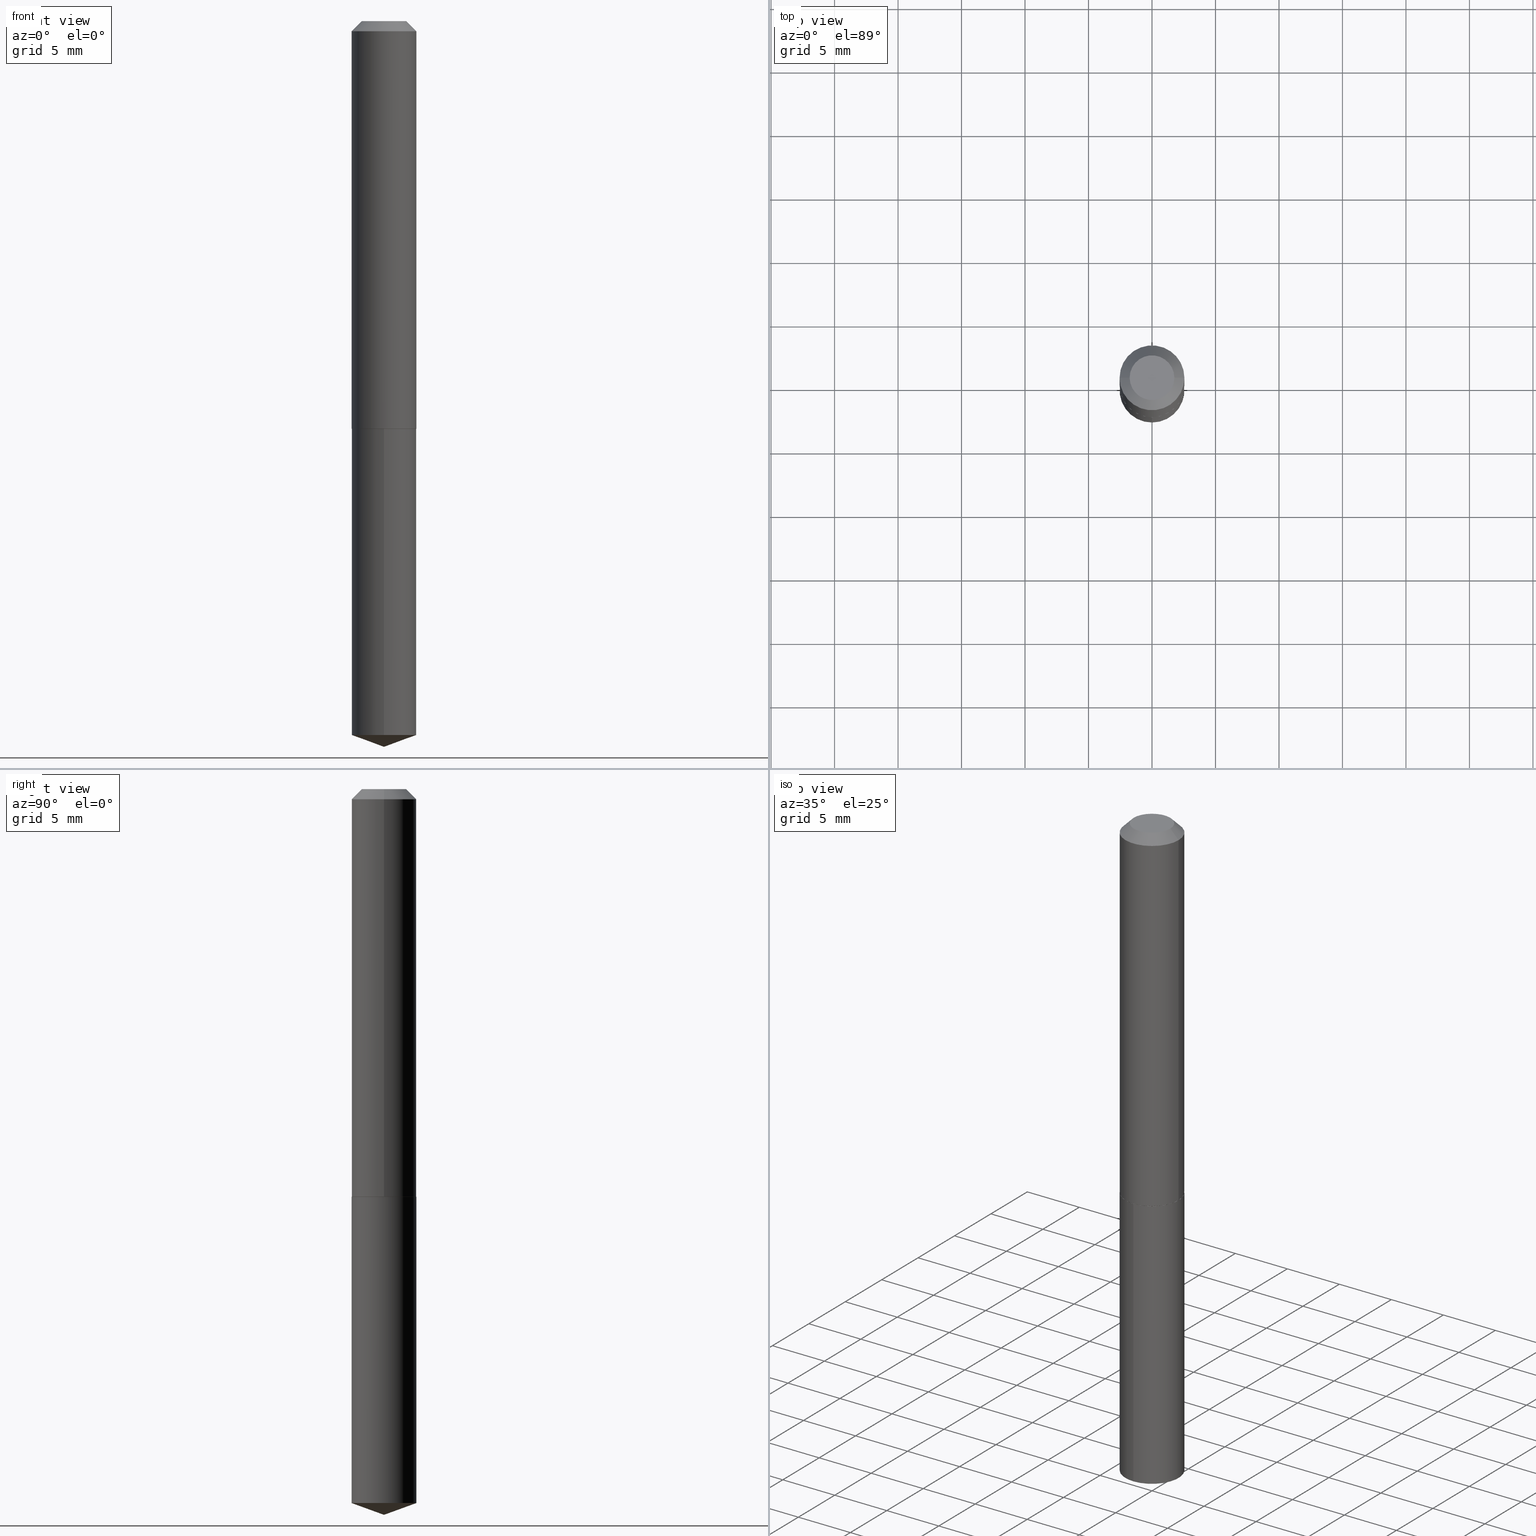
[diagram: canonical four-view strip — front | top / right | iso, engineering-drawing reading convention]
A machine part, canonical four-view strip (front | top / right | iso — engineering-drawing reading convention). The complete STEP part file that produces these views, byte-faithful:
ISO-10303-21;
HEADER;
FILE_DESCRIPTION (( 'STEP AP203' ),
    '1' );
FILE_NAME ('56007.STEP',
    '2024-04-22T19:37:42',
    ( '' ),
    ( '' ),
    'SwSTEP 2.0',
    'SolidWorks 2023',
    '' );
FILE_SCHEMA (( 'CONFIG_CONTROL_DESIGN' ));
ENDSEC;

DATA;
#1 = EDGE_CURVE ( 'NONE', #98, #365, #374, .T. ) ;
#2 = EDGE_LOOP ( 'NONE', ( #236, #154, #123, #264 ) ) ;
#3 = CONICAL_SURFACE ( 'NONE', #91, 0.1005000000000001864, 0.7853981633977044075 ) ;
#4 = VERTEX_POINT ( 'NONE', #195 ) ;
#5 = CARTESIAN_POINT ( 'NONE',  ( 3.089849836614920220E-29, -4.411486671628314645E-15, -1.263500000000000068 ) ) ;
#6 = EDGE_LOOP ( 'NONE', ( #230, #135, #69, #27 ) ) ;
#7 = EDGE_CURVE ( 'NONE', #328, #125, #363, .T. ) ;
#8 = CALENDAR_DATE ( 2024, 22, 4 ) ;
#9 = CARTESIAN_POINT ( 'NONE',  ( 3.089849836614920220E-29, -4.411486671628314645E-15, -1.263500000000000068 ) ) ;
#10 = CARTESIAN_POINT ( 'NONE',  ( 3.089849836614919660E-29, -4.411486671628313857E-15, -1.263499999999999845 ) ) ;
#11 = CARTESIAN_POINT ( 'NONE',  ( 7.642090019328600035E-31, -1.091087918388489897E-16, -0.03125000000000020123 ) ) ;
#12 = APPROVAL_DATE_TIME ( #372, #71 ) ;
#13 = EDGE_CURVE ( 'NONE', #328, #93, #244, .T. ) ;
#14 = DIRECTION ( 'NONE',  ( -1.000000000000000000, 6.982962677686266711E-15, 0.000000000000000000 ) ) ;
#15 = CARTESIAN_POINT ( 'NONE',  ( 7.140954494389548650E-16, 0.1004999999999956067, -1.263500000000000290 ) ) ;
#16 = EDGE_CURVE ( 'NONE', #125, #359, #168, .T. ) ;
#17 = SECURITY_CLASSIFICATION_LEVEL ( 'unclassified' ) ;
#18 = PERSON_AND_ORGANIZATION_ROLE ( 'design_owner' ) ;
#19 = DIRECTION ( 'NONE',  ( -6.982962677686268288E-15, -1.000000000000000000, 3.475157955500721397E-15 ) ) ;
#20 = APPROVAL_DATE_TIME ( #45, #291 ) ;
#21 = CARTESIAN_POINT ( 'NONE',  ( 0.000000000000000000, 0.000000000000000000, 0.000000000000000000 ) ) ;
#22 = FACE_OUTER_BOUND ( 'NONE', #174, .T. ) ;
#23 = CIRCLE ( 'NONE', #352, 0.1005000000000000060 ) ;
#24 = AXIS2_PLACEMENT_3D ( 'NONE', #321, #384, #51 ) ;
#25 = PRODUCT_DEFINITION ( 'UNKNOWN', '', #259, #223 ) ;
#26 = EDGE_LOOP ( 'NONE', ( #37, #294 ) ) ;
#27 = ORIENTED_EDGE ( 'NONE', *, *, #254, .F. ) ;
#28 = APPROVAL_STATUS ( 'not_yet_approved' ) ;
#29 = AXIS2_PLACEMENT_3D ( 'NONE', #49, #239, #14 ) ;
#30 = CC_DESIGN_APPROVAL ( #291, ( #203 ) ) ;
#31 = EDGE_LOOP ( 'NONE', ( #210, #96 ) ) ;
#32 = EDGE_CURVE ( 'NONE', #324, #121, #23, .T. ) ;
#33 = ORIENTED_EDGE ( 'NONE', *, *, #385, .T. ) ;
#34 = ORIENTED_EDGE ( 'NONE', *, *, #183, .T. ) ;
#35 = AXIS2_PLACEMENT_3D ( 'NONE', #117, #227, #356 ) ;
#36 = EDGE_CURVE ( 'NONE', #125, #328, #132, .T. ) ;
#37 = ORIENTED_EDGE ( 'NONE', *, *, #32, .T. ) ;
#38 = CARTESIAN_POINT ( 'NONE',  ( 7.140954494389315936E-16, 0.1004999999999956067, -1.263500000000000290 ) ) ;
#39 = CARTESIAN_POINT ( 'NONE',  ( -9.077337119869925652E-28, 1.296078191380455947E-13, 37.12007874015748143 ) ) ;
#40 = LINE ( 'NONE', #193, #350 ) ;
#41 = DIRECTION ( 'NONE',  ( -2.445400458116039317E-29, 3.491579217168223219E-15, 1.000000000000000000 ) ) ;
#42 = APPROVAL_STATUS ( 'not_yet_approved' ) ;
#43 = CARTESIAN_POINT ( 'NONE',  ( -9.077337119869925652E-28, 1.296078191380455947E-13, 37.12007874015748143 ) ) ;
#44 = DIRECTION ( 'NONE',  ( -1.000000000000000000, 6.982962677686266711E-15, 0.000000000000000000 ) ) ;
#45 = DATE_AND_TIME ( #137, #111 ) ;
#46 = VECTOR ( 'NONE', #106, 39.37007874015748143 ) ;
#47 = LINE ( 'NONE', #76, #89 ) ;
#48 = DIRECTION ( 'NONE',  ( -2.438088387897960049E-29, 3.491481338843145188E-15, 1.000000000000000000 ) ) ;
#49 = CARTESIAN_POINT ( 'NONE',  ( 7.642090019328600035E-31, -1.091087918388489897E-16, -0.03125000000000020123 ) ) ;
#50 = PERSON_AND_ORGANIZATION_ROLE ( 'creator' ) ;
#51 = DIRECTION ( 'NONE',  ( 1.000000000000000000, -6.982962677686266711E-15, 0.000000000000000000 ) ) ;
#52 = LOCAL_TIME ( 15, 37, 42.00000000000000000, #126 ) ;
#53 = CARTESIAN_POINT ( 'NONE',  ( -7.017877491074157398E-16, -0.1005000000000077498, -2.213420991456246600 ) ) ;
#54 = DIRECTION ( 'NONE',  ( -2.445468806185136597E-29, 3.491481338843145583E-15, 1.000000000000000000 ) ) ;
#55 = PERSON ( 'UNSPECIFIED', 'UNSPECIFIED', 'UNSPECIFIED', ('UNSPECIFIED'), ('UNSPECIFIED'), ('UNSPECIFIED') ) ;
#56 =( LENGTH_UNIT ( ) NAMED_UNIT ( * ) SI_UNIT ( $, .METRE. ) );
#57 = ADVANCED_FACE ( 'NONE', ( #188 ), #186, .T. ) ;
#58 = MECHANICAL_CONTEXT ( 'NONE', #171, 'mechanical' ) ;
#59 = PRODUCT_RELATED_PRODUCT_CATEGORY ( 'detail', '', ( #229 ) ) ;
#60 = EDGE_CURVE ( 'NONE', #4, #332, #255, .T. ) ;
#61 = ORIENTED_EDGE ( 'NONE', *, *, #295, .T. ) ;
#62 = DATE_AND_TIME ( #8, #228 ) ;
#63 = EDGE_LOOP ( 'NONE', ( #339, #94, #247, #180 ) ) ;
#64 = ADVANCED_FACE ( 'NONE', ( #378 ), #369, .T. ) ;
#65 = ADVANCED_FACE ( 'NONE', ( #218 ), #240, .T. ) ;
#66 = APPROVAL_DATE_TIME ( #305, #226 ) ;
#67 = CIRCLE ( 'NONE', #323, 0.1005000000000000060 ) ;
#68 = APPROVAL_PERSON_ORGANIZATION ( #79, #291, #376 ) ;
#69 = ORIENTED_EDGE ( 'NONE', *, *, #32, .F. ) ;
#70 = ORIENTED_EDGE ( 'NONE', *, *, #385, .F. ) ;
#71 = APPROVAL ( #28, 'UNSPECIFIED' ) ;
#72 = EDGE_LOOP ( 'NONE', ( #176, #61, #233, #211 ) ) ;
#73 = DIRECTION ( 'NONE',  ( 1.000000000000000000, -6.982962677686263555E-15, 0.000000000000000000 ) ) ;
#74 = DIRECTION ( 'NONE',  ( 1.000000000000000000, -6.982962677686267499E-15, 0.000000000000000000 ) ) ;
#75 = DIRECTION ( 'NONE',  ( -6.561838499445203218E-15, -0.9396926207859074287, 0.3420201433256712664 ) ) ;
#76 = CARTESIAN_POINT ( 'NONE',  ( -7.017877491074388140E-16, -0.1005000000000044191, -1.263499999999999845 ) ) ;
#77 = DIRECTION ( 'NONE',  ( -2.445468806185136597E-29, 3.491481338843145583E-15, 1.000000000000000000 ) ) ;
#78 = LINE ( 'NONE', #136, #110 ) ;
#79 = PERSON_AND_ORGANIZATION ( #55, #249 ) ;
#80 = CARTESIAN_POINT ( 'NONE',  ( 4.492253318863949576E-48, -6.413747168845403315E-34, -1.836970198721013465E-19 ) ) ;
#81 = AXIS2_PLACEMENT_3D ( 'NONE', #130, #184, #237 ) ;
#82 = DIRECTION ( 'NONE',  ( 0.7071067811867286501, -2.468850131084153877E-15, 0.7071067811863664954 ) ) ;
#83 = PERSON_AND_ORGANIZATION ( #55, #249 ) ;
#84 = DIRECTION ( 'NONE',  ( 2.438088387897960049E-29, -3.491481338843145188E-15, -1.000000000000000000 ) ) ;
#85 = CARTESIAN_POINT ( 'NONE',  ( -7.017877491074388140E-16, -0.1005000000000044191, -1.263499999999999845 ) ) ;
#86 = ADVANCED_FACE ( 'NONE', ( #340 ), #133, .F. ) ;
#87 = CARTESIAN_POINT ( 'NONE',  ( 0.000000000000000000, 0.000000000000000000, 0.000000000000000000 ) ) ;
#88 = CARTESIAN_POINT ( 'NONE',  ( 0.1005000000000001864, -5.111528680066364398E-15, -1.263000000000000123 ) ) ;
#89 = VECTOR ( 'NONE', #347, 39.37007874015748143 ) ;
#90 = EDGE_CURVE ( 'NONE', #98, #177, #40, .T. ) ;
#91 = AXIS2_PLACEMENT_3D ( 'NONE', #196, #128, #74 ) ;
#92 = ORIENTED_EDGE ( 'NONE', *, *, #131, .F. ) ;
#93 = VERTEX_POINT ( 'NONE', #366 ) ;
#94 = ORIENTED_EDGE ( 'NONE', *, *, #122, .T. ) ;
#95 = FACE_OUTER_BOUND ( 'NONE', #6, .T. ) ;
#96 = ORIENTED_EDGE ( 'NONE', *, *, #122, .F. ) ;
#97 = CC_DESIGN_PERSON_AND_ORGANIZATION_ASSIGNMENT ( #156, #268, ( #25 ) ) ;
#98 = VERTEX_POINT ( 'NONE', #314 ) ;
#99 = PLANE ( 'NONE',  #298 ) ;
#100 = DIRECTION ( 'NONE',  ( -2.445400458116039317E-29, 3.491579217168223219E-15, 1.000000000000000000 ) ) ;
#101 = APPROVAL_PERSON_ORGANIZATION ( #296, #71, #150 ) ;
#102 = MANIFOLD_SOLID_BREP ( 'Body-Move/Copy2[1]', #292 ) ;
#103 = DIRECTION ( 'NONE',  ( 1.000000000000000000, -6.982962677686265922E-15, 4.876176775795935793E-29 ) ) ;
#104 = PERSON_AND_ORGANIZATION ( #55, #249 ) ;
#105 = ADVANCED_FACE ( 'NONE', ( #345 ), #99, .F. ) ;
#106 = DIRECTION ( 'NONE',  ( 0.7071067811865452413, -7.319954787623248157E-15, -0.7071067811865497932 ) ) ;
#107 = FACE_OUTER_BOUND ( 'NONE', #63, .T. ) ;
#108 = DIRECTION ( 'NONE',  ( -6.982962677686265922E-15, -1.000000000000000000, 2.718256710113694497E-15 ) ) ;
#109 = CARTESIAN_POINT ( 'NONE',  ( 4.492253318863949576E-48, -6.413747168845403315E-34, -1.836970198721013465E-19 ) ) ;
#110 = VECTOR ( 'NONE', #245, 39.37007874015748143 ) ;
#111 = LOCAL_TIME ( 15, 37, 42.00000000000000000, #380 ) ;
#112 = CALENDAR_DATE ( 2024, 22, 4 ) ;
#113 = DIRECTION ( 'NONE',  ( -6.982962677686265922E-15, -1.000000000000000000, 2.718256710113694497E-15 ) ) ;
#114 = APPROVAL_STATUS ( 'not_yet_approved' ) ;
#115 = DIRECTION ( 'NONE',  ( 1.000000000000000000, -6.982962677686267499E-15, 0.000000000000000000 ) ) ;
#116 = PRODUCT_DEFINITION_SHAPE ( 'NONE', 'NONE',  #25 ) ;
#117 = CARTESIAN_POINT ( 'NONE',  ( 0.000000000000000000, 0.000000000000000000, 0.000000000000000000 ) ) ;
#118 = AXIS2_PLACEMENT_3D ( 'NONE', #214, #336, #113 ) ;
#119 = AXIS2_PLACEMENT_3D ( 'NONE', #43, #315, #19 ) ;
#120 = EDGE_LOOP ( 'NONE', ( #92, #362, #207, #269 ) ) ;
#121 = VERTEX_POINT ( 'NONE', #15 ) ;
#122 = EDGE_CURVE ( 'NONE', #332, #4, #192, .T. ) ;
#123 = ORIENTED_EDGE ( 'NONE', *, *, #13, .T. ) ;
#124 = VECTOR ( 'NONE', #311, 39.37007874015748143 ) ;
#125 = VERTEX_POINT ( 'NONE', #271 ) ;
#126 = COORDINATED_UNIVERSAL_TIME_OFFSET ( 5, 0, .BEHIND. ) ;
#127 = ORIENTED_EDGE ( 'NONE', *, *, #90, .T. ) ;
#128 = DIRECTION ( 'NONE',  ( -2.445468806185136597E-29, 3.491481338843145583E-15, 1.000000000000000000 ) ) ;
#129 = COORDINATED_UNIVERSAL_TIME_OFFSET ( 5, 0, .BEHIND. ) ;
#130 = CARTESIAN_POINT ( 'NONE',  ( 3.089849836614920220E-29, -4.411486671628314645E-15, -1.263500000000000068 ) ) ;
#131 = EDGE_CURVE ( 'NONE', #365, #121, #333, .T. ) ;
#132 = CIRCLE ( 'NONE', #234, 0.06925000000000000600 ) ;
#133 = PLANE ( 'NONE',  #148 ) ;
#134 = VECTOR ( 'NONE', #221, 39.37007874015748854 ) ;
#135 = ORIENTED_EDGE ( 'NONE', *, *, #131, .T. ) ;
#136 = CARTESIAN_POINT ( 'NONE',  ( 0.1005000000000000893, -7.017877491074704671E-16, 4.900557659674919900E-30 ) ) ;
#137 = CALENDAR_DATE ( 2024, 22, 4 ) ;
#138 = DIRECTION ( 'NONE',  ( 1.000000000000000000, -6.982962677686263555E-15, 0.000000000000000000 ) ) ;
#139 = ADVANCED_BREP_SHAPE_REPRESENTATION ( '56007', ( #102, #361, #35 ), #329 ) ;
#140 = DIRECTION ( 'NONE',  ( 6.982962677686265922E-15, 1.000000000000000000, -3.491579217168222825E-15 ) ) ;
#141 = CC_DESIGN_APPROVAL ( #226, ( #25 ) ) ;
#142 = DIRECTION ( 'NONE',  ( -2.445468806185136597E-29, 3.491481338843145583E-15, 1.000000000000000000 ) ) ;
#143 = DIRECTION ( 'NONE',  ( 1.000000000000000000, -6.982962677686267499E-15, 0.000000000000000000 ) ) ;
#144 = EDGE_CURVE ( 'NONE', #365, #177, #379, .T. ) ;
#145 = CIRCLE ( 'NONE', #386, 0.1005000000000001864 ) ;
#146 =( CONVERSION_BASED_UNIT ( 'INCH', #289 ) LENGTH_UNIT ( ) NAMED_UNIT ( #179 ) );
#147 = ORIENTED_EDGE ( 'NONE', *, *, #1, .T. ) ;
#148 = AXIS2_PLACEMENT_3D ( 'NONE', #162, #84, #308 ) ;
#149 = CC_DESIGN_APPROVAL ( #71, ( #259 ) ) ;
#150 = APPROVAL_ROLE ( '' ) ;
#151 = ORIENTED_EDGE ( 'NONE', *, *, #16, .T. ) ;
#152 = VERTEX_POINT ( 'NONE', #88 ) ;
#153 = EDGE_LOOP ( 'NONE', ( #178, #151, #33, #262 ) ) ;
#154 = ORIENTED_EDGE ( 'NONE', *, *, #7, .F. ) ;
#155 = CARTESIAN_POINT ( 'NONE',  ( -0.1000000000000002970, -3.698294708694101050E-15, -1.263499999999999845 ) ) ;
#156 = PERSON_AND_ORGANIZATION ( #55, #249 ) ;
#157 = DIRECTION ( 'NONE',  ( -2.445400458116039317E-29, 3.491579217168222825E-15, 1.000000000000000000 ) ) ;
#158 = DIRECTION ( 'NONE',  ( -6.982962677686268288E-15, -1.000000000000000000, 3.475157955500721397E-15 ) ) ;
#159 = PERSON_AND_ORGANIZATION_ROLE ( 'design_supplier' ) ;
#160 = CARTESIAN_POINT ( 'NONE',  ( 5.502325260843377082E-29, -7.855805900101031089E-15, -2.250000000000000000 ) ) ;
#161 = DIRECTION ( 'NONE',  ( -6.982962677686265922E-15, -1.000000000000000000, 2.718256710113694497E-15 ) ) ;
#162 = CARTESIAN_POINT ( 'NONE',  ( 2.246126659431974788E-48, -3.206873584422701658E-34, -9.184850993605067327E-20 ) ) ;
#163 = DIRECTION ( 'NONE',  ( -0.7071067811867286501, 7.493145998871008915E-15, 0.7071067811863664954 ) ) ;
#164 = SHAPE_DEFINITION_REPRESENTATION ( #116, #139 ) ;
#165 = DIRECTION ( 'NONE',  ( -2.445468806185136597E-29, 3.491481338843145583E-15, 1.000000000000000000 ) ) ;
#166 = CALENDAR_DATE ( 2024, 22, 4 ) ;
#167 = CC_DESIGN_PERSON_AND_ORGANIZATION_ASSIGNMENT ( #216, #159, ( #259 ) ) ;
#168 = LINE ( 'NONE', #377, #46 ) ;
#169 = PLANE ( 'NONE',  #341 ) ;
#170 = AXIS2_PLACEMENT_3D ( 'NONE', #39, #100, #158 ) ;
#171 = APPLICATION_CONTEXT ( 'configuration controlled 3d designs of mechanical parts and assemblies' ) ;
#172 = DIRECTION ( 'NONE',  ( -2.445468806185136597E-29, 3.491481338843145583E-15, 1.000000000000000000 ) ) ;
#173 = CONICAL_SURFACE ( 'NONE', #351, 0.1005000000000000060, 0.7853981633974450594 ) ;
#174 = EDGE_LOOP ( 'NONE', ( #34, #327, #70, #205 ) ) ;
#175 = DATE_TIME_ROLE ( 'creation_date' ) ;
#176 = ORIENTED_EDGE ( 'NONE', *, *, #60, .T. ) ;
#177 = VERTEX_POINT ( 'NONE', #53 ) ;
#178 = ORIENTED_EDGE ( 'NONE', *, *, #36, .F. ) ;
#179 = DIMENSIONAL_EXPONENTS ( 1.000000000000000000, 0.000000000000000000, 0.000000000000000000, 0.000000000000000000, 0.000000000000000000, 0.000000000000000000, 0.000000000000000000 ) ;
#180 = ORIENTED_EDGE ( 'NONE', *, *, #330, .F. ) ;
#181 = CALENDAR_DATE ( 2024, 22, 4 ) ;
#182 = VECTOR ( 'NONE', #82, 39.37007874015748143 ) ;
#183 = EDGE_CURVE ( 'NONE', #152, #331, #145, .T. ) ;
#184 = DIRECTION ( 'NONE',  ( -2.445400458116039317E-29, 3.491579217168223219E-15, 1.000000000000000000 ) ) ;
#185 = APPLICATION_CONTEXT ( 'configuration controlled 3d designs of mechanical parts and assemblies' ) ;
#186 = CYLINDRICAL_SURFACE ( 'NONE', #81, 0.1005000000000000060 ) ;
#187 = LINE ( 'NONE', #367, #286 ) ;
#188 = FACE_OUTER_BOUND ( 'NONE', #120, .T. ) ;
#189 = CARTESIAN_POINT ( 'NONE',  ( 3.089849836614920220E-29, -4.411486671628314645E-15, -1.263500000000000068 ) ) ;
#190 = EDGE_CURVE ( 'NONE', #93, #359, #202, .T. ) ;
#191 = AXIS2_PLACEMENT_3D ( 'NONE', #80, #217, #278 ) ;
#192 = CIRCLE ( 'NONE', #370, 0.1000000000000002970 ) ;
#193 = CARTESIAN_POINT ( 'NONE',  ( 5.502151030761089024E-29, -7.856053238628501948E-15, -2.250000000000000000 ) ) ;
#194 = LOCAL_TIME ( 15, 37, 42.00000000000000000, #284 ) ;
#195 = CARTESIAN_POINT ( 'NONE',  ( 0.1000000000000002970, -5.109782939396942105E-15, -1.263499999999999845 ) ) ;
#196 = CARTESIAN_POINT ( 'NONE',  ( 3.088627102211827979E-29, -4.409740930958893142E-15, -1.263000000000000123 ) ) ;
#197 = DIRECTION ( 'NONE',  ( -2.445468806185136597E-29, 3.491481338843145583E-15, 1.000000000000000000 ) ) ;
#198 = AXIS2_PLACEMENT_3D ( 'NONE', #10, #77, #73 ) ;
#199 = DIRECTION ( 'NONE',  ( 1.000000000000000000, -6.982962677686266711E-15, 4.876176775795935793E-29 ) ) ;
#200 = CC_DESIGN_PERSON_AND_ORGANIZATION_ASSIGNMENT ( #248, #317, ( #203 ) ) ;
#201 = ADVANCED_FACE ( 'NONE', ( #224 ), #169, .F. ) ;
#202 = CIRCLE ( 'NONE', #24, 0.1005000000000000060 ) ;
#203 = SECURITY_CLASSIFICATION ( '', '', #17 ) ;
#204 = ADVANCED_FACE ( 'NONE', ( #22 ), #288, .T. ) ;
#205 = ORIENTED_EDGE ( 'NONE', *, *, #283, .F. ) ;
#206 = ORIENTED_EDGE ( 'NONE', *, *, #190, .F. ) ;
#207 = ORIENTED_EDGE ( 'NONE', *, *, #254, .T. ) ;
#208 = ADVANCED_FACE ( 'NONE', ( #222 ), #241, .T. ) ;
#209 = AXIS2_PLACEMENT_3D ( 'NONE', #21, #142, #199 ) ;
#210 = ORIENTED_EDGE ( 'NONE', *, *, #60, .F. ) ;
#211 = ORIENTED_EDGE ( 'NONE', *, *, #353, .F. ) ;
#212 = CARTESIAN_POINT ( 'NONE',  ( 3.089849836614919660E-29, -4.411486671628313857E-15, -1.263499999999999845 ) ) ;
#213 = CARTESIAN_POINT ( 'NONE',  ( 3.088627102211827979E-29, -4.409740930958893142E-15, -1.263000000000000123 ) ) ;
#214 = CARTESIAN_POINT ( 'NONE',  ( 5.412787064296067741E-29, -7.728211063348778452E-15, -2.213420991456246600 ) ) ;
#215 = CARTESIAN_POINT ( 'NONE',  ( 7.140954494389547664E-16, 0.1004999999999922899, -2.213420991456247044 ) ) ;
#216 = PERSON_AND_ORGANIZATION ( #55, #249 ) ;
#217 = DIRECTION ( 'NONE',  ( -2.445468806185136597E-29, 3.491481338843145583E-15, 1.000000000000000000 ) ) ;
#218 = FACE_OUTER_BOUND ( 'NONE', #358, .T. ) ;
#219 = FACE_OUTER_BOUND ( 'NONE', #2, .T. ) ;
#220 = AXIS2_PLACEMENT_3D ( 'NONE', #11, #54, #322 ) ;
#221 = DIRECTION ( 'NONE',  ( 6.676917655467968129E-15, 0.9396926207859097602, 0.3420201433256646606 ) ) ;
#222 = FACE_OUTER_BOUND ( 'NONE', #72, .T. ) ;
#223 = DESIGN_CONTEXT ( 'detailed design', #185, 'design' ) ;
#224 = FACE_OUTER_BOUND ( 'NONE', #26, .T. ) ;
#225 = CONICAL_SURFACE ( 'NONE', #170, 108.1684023407334223, 1.221730476396031495 ) ;
#226 = APPROVAL ( #114, 'UNSPECIFIED' ) ;
#227 = DIRECTION ( 'NONE',  ( 0.000000000000000000, 0.000000000000000000, 1.000000000000000000 ) ) ;
#228 = LOCAL_TIME ( 15, 37, 42.00000000000000000, #129 ) ;
#229 = PRODUCT ( '56007', '56007', '', ( #58 ) ) ;
#230 = ORIENTED_EDGE ( 'NONE', *, *, #381, .T. ) ;
#231 = EDGE_LOOP ( 'NONE', ( #263, #389 ) ) ;
#232 = DIRECTION ( 'NONE',  ( -6.982962677686265922E-15, -1.000000000000000000, 2.718256710113694497E-15 ) ) ;
#233 = ORIENTED_EDGE ( 'NONE', *, *, #183, .F. ) ;
#234 = AXIS2_PLACEMENT_3D ( 'NONE', #109, #306, #282 ) ;
#235 = CIRCLE ( 'NONE', #293, 0.1005000000000000060 ) ;
#236 = ORIENTED_EDGE ( 'NONE', *, *, #16, .F. ) ;
#237 = DIRECTION ( 'NONE',  ( -6.982962677686265922E-15, -1.000000000000000000, 2.718256710113694497E-15 ) ) ;
#238 = CARTESIAN_POINT ( 'NONE',  ( -0.1005000000000000893, 7.140954494389013210E-16, -4.943529765706185016E-30 ) ) ;
#239 = DIRECTION ( 'NONE',  ( 2.445468806185136597E-29, -3.491481338843145583E-15, -1.000000000000000000 ) ) ;
#240 = CONICAL_SURFACE ( 'NONE', #119, 108.1684023407334223, 1.221730476396031495 ) ;
#241 = CONICAL_SURFACE ( 'NONE', #334, 0.1005000000000001864, 0.7853981633977044075 ) ;
#242 = DIRECTION ( 'NONE',  ( -0.7071067811865452413, 2.468850131082233000E-15, -0.7071067811865497932 ) ) ;
#243 = DIRECTION ( 'NONE',  ( -6.982962677686265922E-15, -1.000000000000000000, 2.718256710113694497E-15 ) ) ;
#244 = LINE ( 'NONE', #310, #277 ) ;
#245 = DIRECTION ( 'NONE',  ( -2.445468806185136877E-29, 3.491481338843145188E-15, 1.000000000000000000 ) ) ;
#246 = COORDINATED_UNIVERSAL_TIME_OFFSET ( 5, 0, .BEHIND. ) ;
#247 = ORIENTED_EDGE ( 'NONE', *, *, #353, .T. ) ;
#248 = PERSON_AND_ORGANIZATION ( #55, #249 ) ;
#249 = ORGANIZATION ( 'UNSPECIFIED', 'UNSPECIFIED', '' ) ;
#250 = UNCERTAINTY_MEASURE_WITH_UNIT (LENGTH_MEASURE( 1.000000000000000082E-05 ), #146, 'distance_accuracy_value', 'NONE');
#251 = FACE_OUTER_BOUND ( 'NONE', #364, .T. ) ;
#252 = ADVANCED_FACE ( 'NONE', ( #251 ), #383, .T. ) ;
#253 = DIRECTION ( 'NONE',  ( -2.445468806185136597E-29, 3.491481338843145583E-15, 1.000000000000000000 ) ) ;
#254 = EDGE_CURVE ( 'NONE', #177, #324, #47, .T. ) ;
#255 = CIRCLE ( 'NONE', #198, 0.1000000000000002970 ) ;
#256 = CC_DESIGN_PERSON_AND_ORGANIZATION_ASSIGNMENT ( #104, #50, ( #259 ) ) ;
#257 = APPLICATION_PROTOCOL_DEFINITION ( 'international standard', 'config_control_design', 1994, #171 ) ;
#258 = ORIENTED_EDGE ( 'NONE', *, *, #330, .T. ) ;
#259 = PRODUCT_DEFINITION_FORMATION_WITH_SPECIFIED_SOURCE ( 'ANY', '', #229, .NOT_KNOWN. ) ;
#260 = CC_DESIGN_SECURITY_CLASSIFICATION ( #203, ( #259 ) ) ;
#261 = EDGE_CURVE ( 'NONE', #121, #324, #235, .T. ) ;
#262 = ORIENTED_EDGE ( 'NONE', *, *, #13, .F. ) ;
#263 = ORIENTED_EDGE ( 'NONE', *, *, #7, .T. ) ;
#264 = ORIENTED_EDGE ( 'NONE', *, *, #190, .T. ) ;
#265 = AXIS2_PLACEMENT_3D ( 'NONE', #87, #253, #285 ) ;
#266 = EDGE_LOOP ( 'NONE', ( #297, #147, #303 ) ) ;
#267 = LINE ( 'NONE', #279, #182 ) ;
#268 = PERSON_AND_ORGANIZATION_ROLE ( 'creator' ) ;
#269 = ORIENTED_EDGE ( 'NONE', *, *, #261, .F. ) ;
#270 = CARTESIAN_POINT ( 'NONE',  ( 0.1005000000000000060, -8.108965409463188774E-16, -0.03125000000000020123 ) ) ;
#271 = CARTESIAN_POINT ( 'NONE',  ( 0.06925000000000000600, -6.368391634802832925E-16, -1.836970198681843421E-19 ) ) ;
#272 = FACE_OUTER_BOUND ( 'NONE', #266, .T. ) ;
#273 = CIRCLE ( 'NONE', #220, 0.1005000000000000060 ) ;
#274 = ADVANCED_FACE ( 'NONE', ( #95 ), #307, .T. ) ;
#275 = APPLICATION_PROTOCOL_DEFINITION ( 'international standard', 'config_control_design', 1994, #185 ) ;
#276 = EDGE_CURVE ( 'NONE', #331, #93, #281, .T. ) ;
#277 = VECTOR ( 'NONE', #242, 39.37007874015748143 ) ;
#278 = DIRECTION ( 'NONE',  ( 1.000000000000000000, -6.982962677686267499E-15, 4.876166693236633478E-29 ) ) ;
#279 = CARTESIAN_POINT ( 'NONE',  ( 0.1005000000000001864, -5.111528680066364398E-15, -1.263000000000000123 ) ) ;
#280 = DIRECTION ( 'NONE',  ( -2.445400458116039317E-29, 3.491579217168223219E-15, 1.000000000000000000 ) ) ;
#281 = LINE ( 'NONE', #238, #124 ) ;
#282 = DIRECTION ( 'NONE',  ( 1.000000000000000000, -6.982962677686267499E-15, 4.876166693236633478E-29 ) ) ;
#283 = EDGE_CURVE ( 'NONE', #152, #359, #78, .T. ) ;
#284 = COORDINATED_UNIVERSAL_TIME_OFFSET ( 5, 0, .BEHIND. ) ;
#285 = DIRECTION ( 'NONE',  ( 1.000000000000000000, -6.982962677686266711E-15, 4.876176775795935793E-29 ) ) ;
#286 = VECTOR ( 'NONE', #163, 39.37007874015748143 ) ;
#287 = DIRECTION ( 'NONE',  ( 2.445400458116039317E-29, -3.491579217168222825E-15, -1.000000000000000000 ) ) ;
#288 = CYLINDRICAL_SURFACE ( 'NONE', #209, 0.1005000000000000893 ) ;
#289 = LENGTH_MEASURE_WITH_UNIT ( LENGTH_MEASURE( 0.02539999999999999897 ), #56 );
#290 = ADVANCED_FACE ( 'NONE', ( #219 ), #173, .T. ) ;
#291 = APPROVAL ( #42, 'UNSPECIFIED' ) ;
#292 = CLOSED_SHELL ( 'NONE', ( #274, #325, #65, #57, #201 ) ) ;
#293 = AXIS2_PLACEMENT_3D ( 'NONE', #5, #360, #232 ) ;
#294 = ORIENTED_EDGE ( 'NONE', *, *, #261, .T. ) ;
#295 = EDGE_CURVE ( 'NONE', #332, #331, #187, .T. ) ;
#296 = PERSON_AND_ORGANIZATION ( #55, #249 ) ;
#297 = ORIENTED_EDGE ( 'NONE', *, *, #90, .F. ) ;
#298 = AXIS2_PLACEMENT_3D ( 'NONE', #368, #48, #103 ) ;
#299 = CLOSED_SHELL ( 'NONE', ( #64, #204, #208, #105, #354, #252, #290, #86 ) ) ;
#300 = ORIENTED_EDGE ( 'NONE', *, *, #283, .T. ) ;
#301 = CC_DESIGN_PERSON_AND_ORGANIZATION_ASSIGNMENT ( #83, #18, ( #229 ) ) ;
#302 = ORIENTED_EDGE ( 'NONE', *, *, #276, .F. ) ;
#303 = ORIENTED_EDGE ( 'NONE', *, *, #381, .F. ) ;
#304 = APPROVAL_PERSON_ORGANIZATION ( #382, #226, #373 ) ;
#305 = DATE_AND_TIME ( #181, #52 ) ;
#306 = DIRECTION ( 'NONE',  ( -2.445468806185136597E-29, 3.491481338843145583E-15, 1.000000000000000000 ) ) ;
#307 = CYLINDRICAL_SURFACE ( 'NONE', #344, 0.1005000000000000060 ) ;
#308 = DIRECTION ( 'NONE',  ( -1.000000000000000000, 6.982962677686265922E-15, -4.876176775795935793E-29 ) ) ;
#309 = CARTESIAN_POINT ( 'NONE',  ( 5.412787064296067741E-29, -7.728211063348778452E-15, -2.213420991456246600 ) ) ;
#310 = CARTESIAN_POINT ( 'NONE',  ( -0.1005000000000000060, 5.926789572686209720E-16, -0.03125000000000020123 ) ) ;
#311 = DIRECTION ( 'NONE',  ( -2.445468806185136877E-29, 3.491481338843145188E-15, 1.000000000000000000 ) ) ;
#312 = DATE_TIME_ROLE ( 'classification_date' ) ;
#313 = VECTOR ( 'NONE', #157, 39.37007874015748143 ) ;
#314 = CARTESIAN_POINT ( 'NONE',  ( 5.502151030761089024E-29, -7.856053238628501948E-15, -2.250000000000000000 ) ) ;
#315 = DIRECTION ( 'NONE',  ( -2.445400458116039317E-29, 3.491579217168223219E-15, 1.000000000000000000 ) ) ;
#316 = CARTESIAN_POINT ( 'NONE',  ( 7.642090019328600035E-31, -1.091087918388489897E-16, -0.03125000000000020123 ) ) ;
#317 = PERSON_AND_ORGANIZATION_ROLE ( 'classification_officer' ) ;
#318 = CC_DESIGN_DATE_AND_TIME_ASSIGNMENT ( #338, #312, ( #203 ) ) ;
#319 = CARTESIAN_POINT ( 'NONE',  ( 3.088627102211827979E-29, -4.409740930958893142E-15, -1.263000000000000123 ) ) ;
#320 = LOCAL_TIME ( 15, 37, 42.00000000000000000, #246 ) ;
#321 = CARTESIAN_POINT ( 'NONE',  ( 7.642090019328600035E-31, -1.091087918388489897E-16, -0.03125000000000020123 ) ) ;
#322 = DIRECTION ( 'NONE',  ( 1.000000000000000000, -6.982962677686266711E-15, 0.000000000000000000 ) ) ;
#323 = AXIS2_PLACEMENT_3D ( 'NONE', #309, #41, #161 ) ;
#324 = VERTEX_POINT ( 'NONE', #85 ) ;
#325 = ADVANCED_FACE ( 'NONE', ( #272 ), #225, .T. ) ;
#326 = ORIENTED_EDGE ( 'NONE', *, *, #144, .F. ) ;
#327 = ORIENTED_EDGE ( 'NONE', *, *, #276, .T. ) ;
#328 = VERTEX_POINT ( 'NONE', #375 ) ;
#329 =( GEOMETRIC_REPRESENTATION_CONTEXT ( 3 ) GLOBAL_UNCERTAINTY_ASSIGNED_CONTEXT ( ( #250 ) ) GLOBAL_UNIT_ASSIGNED_CONTEXT ( ( #146, #387, #355 ) ) REPRESENTATION_CONTEXT ( 'NONE', 'WORKASPACE' ) );
#330 = EDGE_CURVE ( 'NONE', #331, #152, #388, .T. ) ;
#331 = VERTEX_POINT ( 'NONE', #371 ) ;
#332 = VERTEX_POINT ( 'NONE', #155 ) ;
#333 = LINE ( 'NONE', #38, #313 ) ;
#334 = AXIS2_PLACEMENT_3D ( 'NONE', #348, #172, #143 ) ;
#335 = DIRECTION ( 'NONE',  ( 1.000000000000000000, -6.982962677686267499E-15, 0.000000000000000000 ) ) ;
#336 = DIRECTION ( 'NONE',  ( -2.445400458116039317E-29, 3.491579217168223219E-15, 1.000000000000000000 ) ) ;
#337 = DIRECTION ( 'NONE',  ( 2.445468806185136597E-29, -3.491481338843145583E-15, -1.000000000000000000 ) ) ;
#338 = DATE_AND_TIME ( #166, #194 ) ;
#339 = ORIENTED_EDGE ( 'NONE', *, *, #295, .F. ) ;
#340 = FACE_OUTER_BOUND ( 'NONE', #231, .T. ) ;
#341 = AXIS2_PLACEMENT_3D ( 'NONE', #349, #287, #140 ) ;
#342 = DIRECTION ( 'NONE',  ( -2.445468806185136597E-29, 3.491481338843145583E-15, 1.000000000000000000 ) ) ;
#343 = CC_DESIGN_DATE_AND_TIME_ASSIGNMENT ( #62, #175, ( #25 ) ) ;
#344 = AXIS2_PLACEMENT_3D ( 'NONE', #189, #346, #243 ) ;
#345 = FACE_OUTER_BOUND ( 'NONE', #31, .T. ) ;
#346 = DIRECTION ( 'NONE',  ( -2.445400458116039317E-29, 3.491579217168223219E-15, 1.000000000000000000 ) ) ;
#347 = DIRECTION ( 'NONE',  ( -2.445400458116039317E-29, 3.491579217168222825E-15, 1.000000000000000000 ) ) ;
#348 = CARTESIAN_POINT ( 'NONE',  ( 3.088627102211827979E-29, -4.409740930958893142E-15, -1.263000000000000123 ) ) ;
#349 = CARTESIAN_POINT ( 'NONE',  ( 3.089849836614920220E-29, -4.411486671628314645E-15, -1.263500000000000068 ) ) ;
#350 = VECTOR ( 'NONE', #75, 39.37007874015748854 ) ;
#351 = AXIS2_PLACEMENT_3D ( 'NONE', #316, #337, #44 ) ;
#352 = AXIS2_PLACEMENT_3D ( 'NONE', #9, #280, #108 ) ;
#353 = EDGE_CURVE ( 'NONE', #4, #152, #267, .T. ) ;
#354 = ADVANCED_FACE ( 'NONE', ( #107 ), #3, .T. ) ;
#355 =( NAMED_UNIT ( * ) SI_UNIT ( $, .STERADIAN. ) SOLID_ANGLE_UNIT ( ) );
#356 = DIRECTION ( 'NONE',  ( 1.000000000000000000, 0.000000000000000000, 0.000000000000000000 ) ) ;
#357 = AXIS2_PLACEMENT_3D ( 'NONE', #213, #342, #335 ) ;
#358 = EDGE_LOOP ( 'NONE', ( #390, #127, #326 ) ) ;
#359 = VERTEX_POINT ( 'NONE', #270 ) ;
#360 = DIRECTION ( 'NONE',  ( -2.445400458116039317E-29, 3.491579217168223219E-15, 1.000000000000000000 ) ) ;
#361 = MANIFOLD_SOLID_BREP ( 'Body-Move/Copy2[2]', #299 ) ;
#362 = ORIENTED_EDGE ( 'NONE', *, *, #144, .T. ) ;
#363 = CIRCLE ( 'NONE', #191, 0.06925000000000000600 ) ;
#364 = EDGE_LOOP ( 'NONE', ( #302, #258, #300, #206 ) ) ;
#365 = VERTEX_POINT ( 'NONE', #215 ) ;
#366 = CARTESIAN_POINT ( 'NONE',  ( -0.1005000000000000060, -1.545329411959969209E-15, -0.03125000000000020123 ) ) ;
#367 = CARTESIAN_POINT ( 'NONE',  ( -0.1005000000000001864, -3.695645481519991426E-15, -1.263000000000000123 ) ) ;
#368 = CARTESIAN_POINT ( 'NONE',  ( 5.500152039207796120E-29, -9.597967316335232014E-16, -1.263499999999999845 ) ) ;
#369 = CONICAL_SURFACE ( 'NONE', #29, 0.1005000000000000060, 0.7853981633974450594 ) ;
#370 = AXIS2_PLACEMENT_3D ( 'NONE', #212, #165, #138 ) ;
#371 = CARTESIAN_POINT ( 'NONE',  ( -0.1005000000000001864, -3.695645481519991426E-15, -1.263000000000000123 ) ) ;
#372 = DATE_AND_TIME ( #112, #320 ) ;
#373 = APPROVAL_ROLE ( '' ) ;
#374 = LINE ( 'NONE', #160, #134 ) ;
#375 = CARTESIAN_POINT ( 'NONE',  ( -0.06925000000000000600, 5.381245613491975063E-16, -1.836970198756736818E-19 ) ) ;
#376 = APPROVAL_ROLE ( '' ) ;
#377 = CARTESIAN_POINT ( 'NONE',  ( 0.1005000000000000060, -7.985888406148880235E-16, -0.03125000000000020123 ) ) ;
#378 = FACE_OUTER_BOUND ( 'NONE', #153, .T. ) ;
#379 = CIRCLE ( 'NONE', #118, 0.1005000000000000060 ) ;
#380 = COORDINATED_UNIVERSAL_TIME_OFFSET ( 5, 0, .BEHIND. ) ;
#381 = EDGE_CURVE ( 'NONE', #177, #365, #67, .T. ) ;
#382 = PERSON_AND_ORGANIZATION ( #55, #249 ) ;
#383 = CYLINDRICAL_SURFACE ( 'NONE', #265, 0.1005000000000000893 ) ;
#384 = DIRECTION ( 'NONE',  ( -2.445468806185136597E-29, 3.491481338843145583E-15, 1.000000000000000000 ) ) ;
#385 = EDGE_CURVE ( 'NONE', #359, #93, #273, .T. ) ;
#386 = AXIS2_PLACEMENT_3D ( 'NONE', #319, #197, #115 ) ;
#387 =( NAMED_UNIT ( * ) PLANE_ANGLE_UNIT ( ) SI_UNIT ( $, .RADIAN. ) );
#388 = CIRCLE ( 'NONE', #357, 0.1005000000000001864 ) ;
#389 = ORIENTED_EDGE ( 'NONE', *, *, #36, .T. ) ;
#390 = ORIENTED_EDGE ( 'NONE', *, *, #1, .F. ) ;
ENDSEC;
END-ISO-10303-21;
